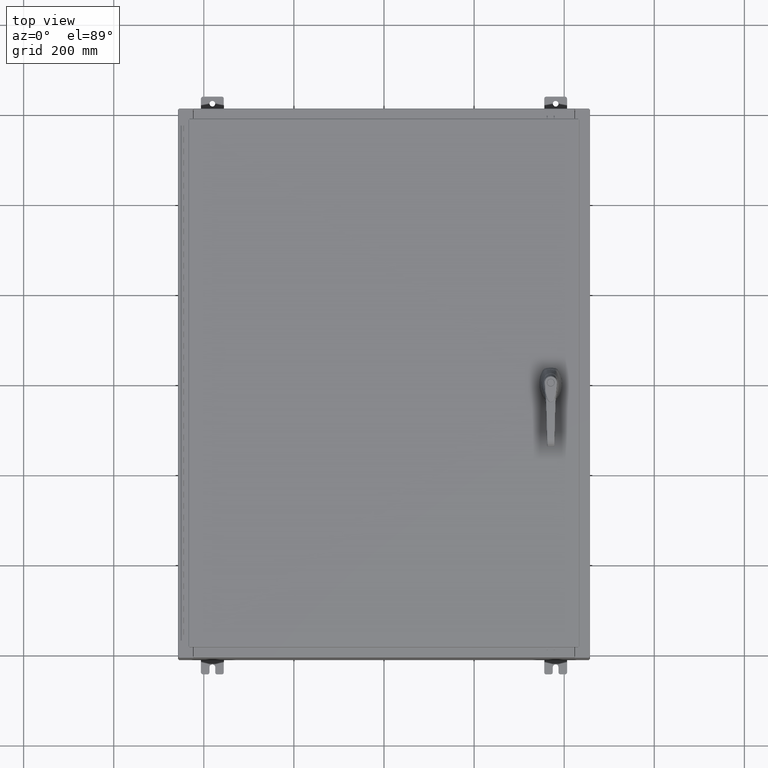
[diagram: clean part render]
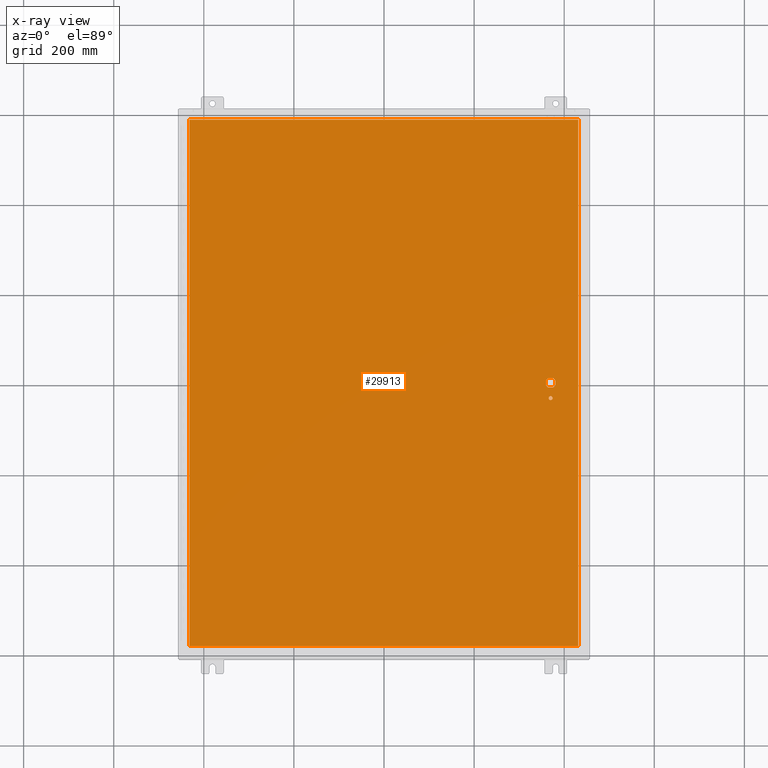
[diagram: x-ray — body ghosted, one internal face saturated and labeled with its STEP entity id]
A machine part, top view, then the same camera in x-ray: the body is ghosted and one INTERNAL B-rep face — a face not visible from any outside direction — is saturated and labeled: STEP entity #29913.
In plain terms, the highlighted planar face has unit normal (0, 0, -1).
Its self-contained STEP definition (entity closure, byte-faithful):
#242 = CARTESIAN_POINT ( 'NONE',  ( 0.0000000000000000000, 0.4029999999999252000, -0.07470000000000003000 ) ) ;
#1347 = ORIENTED_EDGE ( 'NONE', *, *, #96097, .T. ) ;
#1758 = CARTESIAN_POINT ( 'NONE',  ( 14.37777262924369000, -0.4029999999999250300, -0.07470000000000003000 ) ) ;
#2403 = DIRECTION ( 'NONE',  ( -0.0000000000000000000, -0.0000000000000000000, 1.000000000000000000 ) ) ;
#2621 = DIRECTION ( 'NONE',  ( -0.0000000000000000000, -0.0000000000000000000, 1.000000000000000000 ) ) ;
#3146 = CARTESIAN_POINT ( 'NONE',  ( 16.99029999999999800, -23.00630000000000300, -0.07470000000000019700 ) ) ;
#3284 = VERTEX_POINT ( 'NONE', #73768 ) ;
#6425 = VERTEX_POINT ( 'NONE', #6742 ) ;
#6742 = CARTESIAN_POINT ( 'NONE',  ( 14.17500000000007400, -0.2002273707563079800, -0.07470000000000003000 ) ) ;
#7377 = EDGE_CURVE ( 'NONE', #114500, #128927, #25179, .T. ) ;
#8164 = CARTESIAN_POINT ( 'NONE',  ( -16.99029999999999400, 23.00630000000001000, -0.07470000000000129300 ) ) ;
#9227 = LINE ( 'NONE', #132150, #87756 ) ;
#9570 = DIRECTION ( 'NONE',  ( 0.0000000000000000000, -1.000000000000000000, 0.0000000000000000000 ) ) ;
#14044 = ORIENTED_EDGE ( 'NONE', *, *, #15376, .T. ) ;
#14542 = AXIS2_PLACEMENT_3D ( 'NONE', #29675, #39945, #111609 ) ;
#15376 = EDGE_CURVE ( 'NONE', #3284, #32724, #27836, .T. ) ;
#16712 = ORIENTED_EDGE ( 'NONE', *, *, #98972, .F. ) ;
#19361 = EDGE_CURVE ( 'NONE', #95053, #6425, #110749, .T. ) ;
#19436 = CARTESIAN_POINT ( 'NONE',  ( 16.99029999999999800, 23.00630000000000300, -0.07470000000000000300 ) ) ;
#21340 = DIRECTION ( 'NONE',  ( -0.0000000000000000000, -0.0000000000000000000, 1.000000000000000000 ) ) ;
#23245 = CARTESIAN_POINT ( 'NONE',  ( 14.57799999999999900, -1.338000000000000100, -0.07470000000000003000 ) ) ;
#25052 = ORIENTED_EDGE ( 'NONE', *, *, #102327, .T. ) ;
#25179 = LINE ( 'NONE', #242, #49212 ) ;
#25441 = CARTESIAN_POINT ( 'NONE',  ( 14.57799999999999900, 0.0000000000000000000, -0.07470000000000003000 ) ) ;
#27726 = CARTESIAN_POINT ( 'NONE',  ( 16.99029999999999800, -23.00630000000000000, -0.07470000000000000300 ) ) ;
#27836 = CIRCLE ( 'NONE', #53876, 0.1715000000000011500 ) ;
#27876 = EDGE_CURVE ( 'NONE', #48563, #104807, #56560, .T. ) ;
#29675 = CARTESIAN_POINT ( 'NONE',  ( 0.0000000000000000000, 0.0000000000000000000, -0.07470000000000000300 ) ) ;
#29913 = ADVANCED_FACE ( 'NONE', ( #57883, #61108, #30656 ), #131799, .T. ) ;
#30032 = DIRECTION ( 'NONE',  ( 1.000000000000000000, -0.0000000000000000000, -0.0000000000000000000 ) ) ;
#30656 = FACE_BOUND ( 'NONE', #33787, .T. ) ;
#31329 = VERTEX_POINT ( 'NONE', #34564 ) ;
#32097 = CARTESIAN_POINT ( 'NONE',  ( -16.99029999999999400, 23.00630000000000300, -0.07470000000000000300 ) ) ;
#32724 = VERTEX_POINT ( 'NONE', #115473 ) ;
#32735 = DIRECTION ( 'NONE',  ( -0.0000000000000000000, -0.0000000000000000000, 1.000000000000000000 ) ) ;
#32917 = CIRCLE ( 'NONE', #82565, 0.4499999999999168000 ) ;
#33569 = DIRECTION ( 'NONE',  ( -1.000000000000000000, 0.0000000000000000000, 0.0000000000000000000 ) ) ;
#33675 = DIRECTION ( 'NONE',  ( 0.0000000000000000000, 1.000000000000000000, 0.0000000000000000000 ) ) ;
#33696 = VECTOR ( 'NONE', #33675, 39.37007874015748100 ) ;
#33787 = EDGE_LOOP ( 'NONE', ( #102690, #57296, #88332, #107694, #25052, #125171, #94246, #1347 ) ) ;
#34214 = AXIS2_PLACEMENT_3D ( 'NONE', #25441, #97110, #35759 ) ;
#34564 = CARTESIAN_POINT ( 'NONE',  ( 14.98099999999992700, 0.2002273707563075900, -0.07470000000000003000 ) ) ;
#35286 = CARTESIAN_POINT ( 'NONE',  ( 0.0000000000000000000, -0.4029999999999252000, -0.07470000000000003000 ) ) ;
#35759 = DIRECTION ( 'NONE',  ( -1.000000000000000000, -1.776356839400246700E-015, 0.0000000000000000000 ) ) ;
#37240 = LINE ( 'NONE', #82371, #85348 ) ;
#39945 = DIRECTION ( 'NONE',  ( 0.0000000000000000000, 0.0000000000000000000, -1.000000000000000000 ) ) ;
#44649 = CARTESIAN_POINT ( 'NONE',  ( 14.17500000000007400, 0.2002273707563075900, -0.07470000000000003000 ) ) ;
#44737 = ORIENTED_EDGE ( 'NONE', *, *, #92155, .F. ) ;
#48563 = VERTEX_POINT ( 'NONE', #68455 ) ;
#49212 = VECTOR ( 'NONE', #102848, 39.37007874015748100 ) ;
#50323 = CARTESIAN_POINT ( 'NONE',  ( 14.17500000000007400, 0.0000000000000000000, -0.07470000000000003000 ) ) ;
#51236 = CIRCLE ( 'NONE', #90034, 0.1715000000000011500 ) ;
#52423 = CARTESIAN_POINT ( 'NONE',  ( -16.99029999999999800, -23.00630000000000000, -0.07470000000000000300 ) ) ;
#53876 = AXIS2_PLACEMENT_3D ( 'NONE', #94098, #32735, #104335 ) ;
#54946 = CARTESIAN_POINT ( 'NONE',  ( 14.77822737075630900, 0.4029999999999250300, -0.07470000000000003000 ) ) ;
#55413 = DIRECTION ( 'NONE',  ( 1.000000000000000000, 0.0000000000000000000, 0.0000000000000000000 ) ) ;
#56560 = CIRCLE ( 'NONE', #34214, 0.4499999999999168000 ) ;
#57296 = ORIENTED_EDGE ( 'NONE', *, *, #66222, .F. ) ;
#57883 = FACE_BOUND ( 'NONE', #132549, .T. ) ;
#60033 = AXIS2_PLACEMENT_3D ( 'NONE', #82733, #21340, #93036 ) ;
#60566 = EDGE_CURVE ( 'NONE', #79293, #102415, #37240, .T. ) ;
#61108 = FACE_OUTER_BOUND ( 'NONE', #127314, .T. ) ;
#63790 = CARTESIAN_POINT ( 'NONE',  ( 14.57799999999999900, 0.0000000000000000000, -0.07470000000000003000 ) ) ;
#64010 = CARTESIAN_POINT ( 'NONE',  ( 14.57799999999999900, 0.0000000000000000000, -0.07470000000000003000 ) ) ;
#66222 = EDGE_CURVE ( 'NONE', #31329, #104807, #72067, .T. ) ;
#66466 = DIRECTION ( 'NONE',  ( 5.457491617345625800E-015, -1.000000000000000000, 0.0000000000000000000 ) ) ;
#68200 = LINE ( 'NONE', #35286, #92284 ) ;
#68455 = CARTESIAN_POINT ( 'NONE',  ( 14.77822737075630900, -0.4029999999999252000, -0.07470000000000003000 ) ) ;
#69513 = DIRECTION ( 'NONE',  ( 0.0000000000000000000, -1.000000000000000000, 0.0000000000000000000 ) ) ;
#72067 = LINE ( 'NONE', #127829, #126587 ) ;
#73768 = CARTESIAN_POINT ( 'NONE',  ( 14.40649999999999800, -1.338000000000000100, -0.07470000000000003000 ) ) ;
#74099 = DIRECTION ( 'NONE',  ( -1.000000000000000000, -5.329070518200740300E-015, 0.0000000000000000000 ) ) ;
#74318 = DIRECTION ( 'NONE',  ( -1.000000000000000000, -1.776356839400246700E-015, 0.0000000000000000000 ) ) ;
#75856 = EDGE_CURVE ( 'NONE', #95751, #126806, #9227, .T. ) ;
#77064 = VECTOR ( 'NONE', #9570, 39.37007874015748100 ) ;
#79293 = VERTEX_POINT ( 'NONE', #19436 ) ;
#79745 = ORIENTED_EDGE ( 'NONE', *, *, #75856, .F. ) ;
#82371 = CARTESIAN_POINT ( 'NONE',  ( 16.99029999999999800, 23.00630000000001000, -0.07469999999999804600 ) ) ;
#82565 = AXIS2_PLACEMENT_3D ( 'NONE', #64010, #2621, #74318 ) ;
#82733 = CARTESIAN_POINT ( 'NONE',  ( 14.57799999999999900, 0.0000000000000000000, -0.07470000000000003000 ) ) ;
#85348 = VECTOR ( 'NONE', #92661, 39.37007874015748100 ) ;
#87756 = VECTOR ( 'NONE', #30032, 39.37007874015748100 ) ;
#87876 = CIRCLE ( 'NONE', #89216, 0.4499999999999168000 ) ;
#88332 = ORIENTED_EDGE ( 'NONE', *, *, #93714, .T. ) ;
#89216 = AXIS2_PLACEMENT_3D ( 'NONE', #63790, #2403, #74099 ) ;
#90034 = AXIS2_PLACEMENT_3D ( 'NONE', #23245, #94924, #33569 ) ;
#92155 = EDGE_CURVE ( 'NONE', #126806, #79293, #118613, .T. ) ;
#92284 = VECTOR ( 'NONE', #55413, 39.37007874015748100 ) ;
#92326 = EDGE_CURVE ( 'NONE', #32724, #3284, #51236, .T. ) ;
#92661 = DIRECTION ( 'NONE',  ( -1.000000000000000000, -0.0000000000000000000, -0.0000000000000000000 ) ) ;
#93036 = DIRECTION ( 'NONE',  ( -1.000000000000000000, -5.329070518200740300E-015, 0.0000000000000000000 ) ) ;
#93714 = EDGE_CURVE ( 'NONE', #31329, #114500, #87876, .T. ) ;
#94098 = CARTESIAN_POINT ( 'NONE',  ( 14.57799999999999900, -1.338000000000000100, -0.07470000000000003000 ) ) ;
#94246 = ORIENTED_EDGE ( 'NONE', *, *, #96726, .T. ) ;
#94924 = DIRECTION ( 'NONE',  ( -0.0000000000000000000, -0.0000000000000000000, 1.000000000000000000 ) ) ;
#95053 = VERTEX_POINT ( 'NONE', #44649 ) ;
#95751 = VERTEX_POINT ( 'NONE', #52423 ) ;
#96097 = EDGE_CURVE ( 'NONE', #130796, #48563, #68200, .T. ) ;
#96726 = EDGE_CURVE ( 'NONE', #6425, #130796, #32917, .T. ) ;
#97110 = DIRECTION ( 'NONE',  ( -0.0000000000000000000, -0.0000000000000000000, 1.000000000000000000 ) ) ;
#98972 = EDGE_CURVE ( 'NONE', #102415, #95751, #106131, .T. ) ;
#102327 = EDGE_CURVE ( 'NONE', #128927, #95053, #105783, .T. ) ;
#102415 = VERTEX_POINT ( 'NONE', #32097 ) ;
#102690 = ORIENTED_EDGE ( 'NONE', *, *, #27876, .T. ) ;
#102848 = DIRECTION ( 'NONE',  ( -1.000000000000000000, 0.0000000000000000000, 0.0000000000000000000 ) ) ;
#104335 = DIRECTION ( 'NONE',  ( -1.000000000000000000, 0.0000000000000000000, 0.0000000000000000000 ) ) ;
#104807 = VERTEX_POINT ( 'NONE', #115942 ) ;
#105783 = CIRCLE ( 'NONE', #60033, 0.4499999999999168000 ) ;
#106131 = LINE ( 'NONE', #8164, #130199 ) ;
#107694 = ORIENTED_EDGE ( 'NONE', *, *, #7377, .T. ) ;
#110749 = LINE ( 'NONE', #50323, #77064 ) ;
#111087 = ORIENTED_EDGE ( 'NONE', *, *, #60566, .F. ) ;
#111609 = DIRECTION ( 'NONE',  ( -1.000000000000000000, 0.0000000000000000000, -0.0000000000000000000 ) ) ;
#114500 = VERTEX_POINT ( 'NONE', #54946 ) ;
#115473 = CARTESIAN_POINT ( 'NONE',  ( 14.74950000000000100, -1.338000000000000100, -0.07470000000000003000 ) ) ;
#115942 = CARTESIAN_POINT ( 'NONE',  ( 14.98099999999992700, -0.2002273707563067300, -0.07470000000000003000 ) ) ;
#118565 = ORIENTED_EDGE ( 'NONE', *, *, #92326, .T. ) ;
#118613 = LINE ( 'NONE', #3146, #33696 ) ;
#125171 = ORIENTED_EDGE ( 'NONE', *, *, #19361, .T. ) ;
#126587 = VECTOR ( 'NONE', #66466, 39.37007874015748100 ) ;
#126806 = VERTEX_POINT ( 'NONE', #27726 ) ;
#127314 = EDGE_LOOP ( 'NONE', ( #44737, #79745, #16712, #111087 ) ) ;
#127829 = CARTESIAN_POINT ( 'NONE',  ( 14.98099999999992700, 8.175868191945441800E-014, -0.07470000000000003000 ) ) ;
#128927 = VERTEX_POINT ( 'NONE', #132062 ) ;
#130199 = VECTOR ( 'NONE', #69513, 39.37007874015748100 ) ;
#130796 = VERTEX_POINT ( 'NONE', #1758 ) ;
#131799 = PLANE ( 'NONE',  #14542 ) ;
#132062 = CARTESIAN_POINT ( 'NONE',  ( 14.37777262924369000, 0.4029999999999252000, -0.07470000000000003000 ) ) ;
#132150 = CARTESIAN_POINT ( 'NONE',  ( -16.99029999999999800, -23.00630000000000300, -0.07469999999999804600 ) ) ;
#132549 = EDGE_LOOP ( 'NONE', ( #118565, #14044 ) ) ;